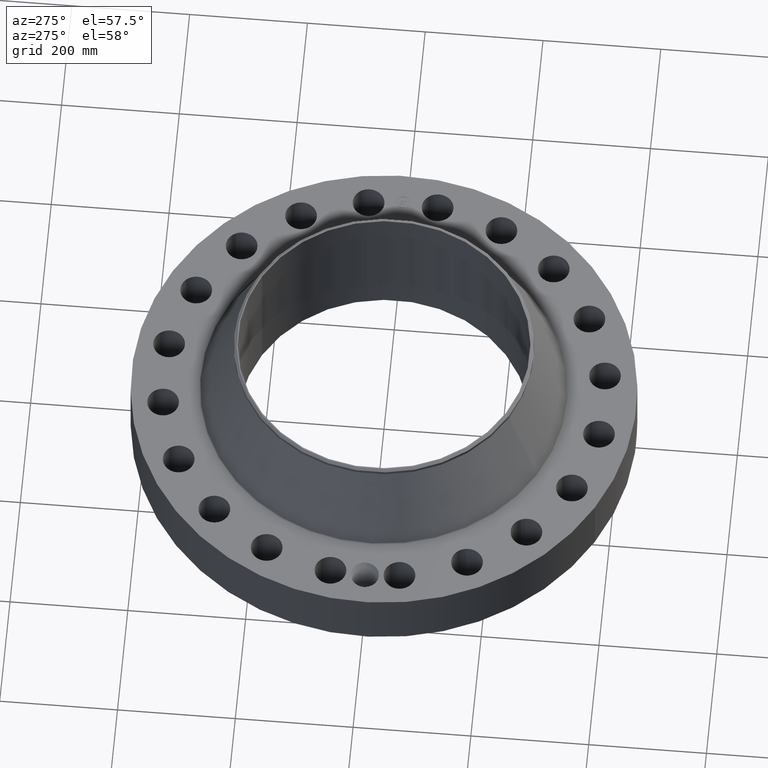
[diagram: clean part render]
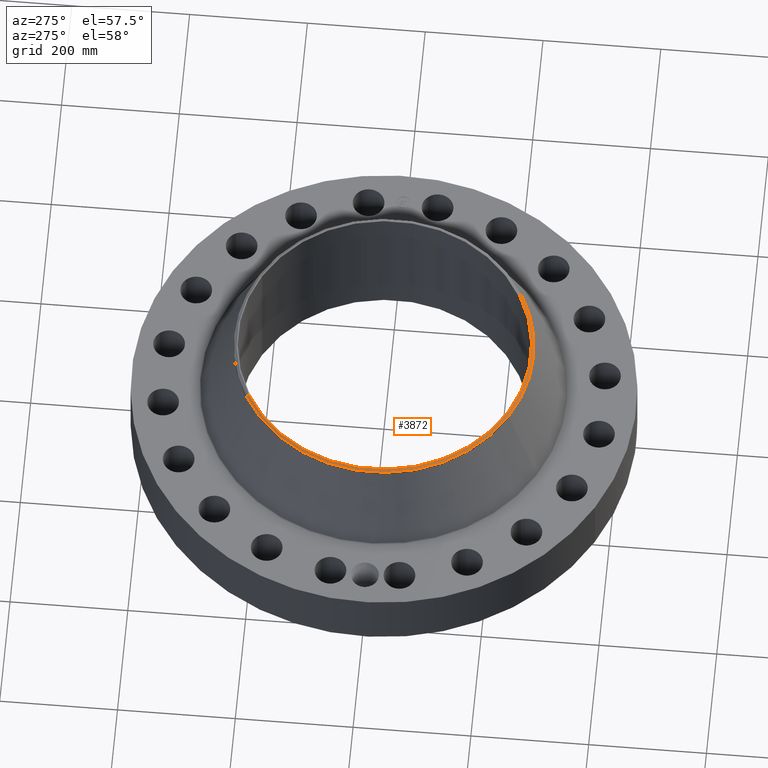
[diagram: same view with one face highlighted and labeled with its STEP entity id]
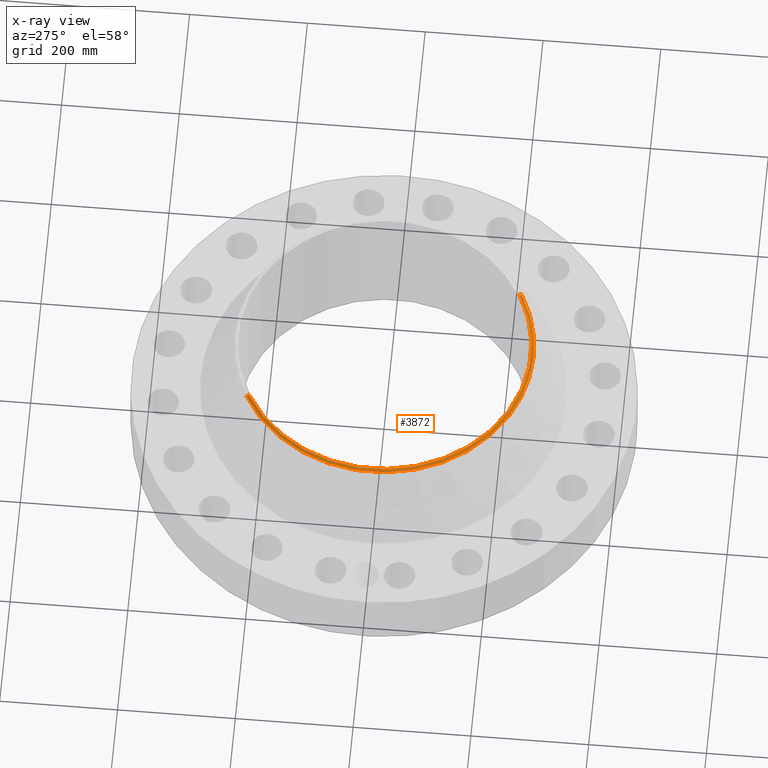
[diagram: x-ray of the same camera — body ghosted, the highlighted face saturated]
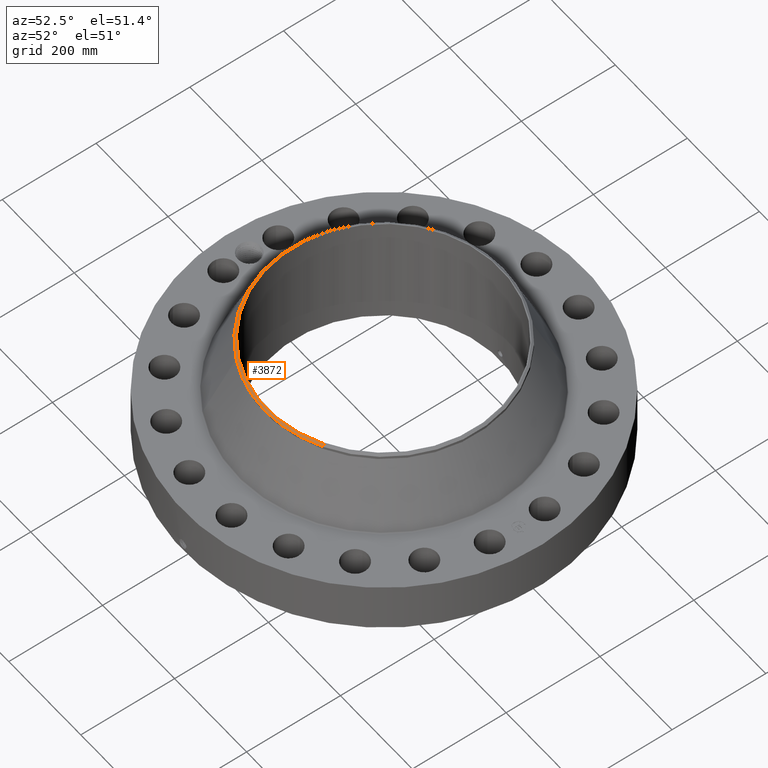
[diagram: same view with one face highlighted and labeled with its STEP entity id]
A machine part, auxiliary view. The second image highlights one B-rep face of the part: STEP entity #3872.
The next image is the same camera in x-ray: the body ghosted, the highlighted face saturated — about 0% of this face is hidden behind the body in this view.
A second angle (auxiliary view) of the same face is appended — the face is thin or edge-on in the first view.
In plain terms, the highlighted conical surface has half-angle 52.5 deg.
Its self-contained STEP definition (entity closure, byte-faithful):
#3001=AXIS2_PLACEMENT_3D('Circle Axis2P3D',#2999,#3000,$) ;
#3837=AXIS2_PLACEMENT_3D('Cone Axis2P3D',#3834,#3835,#3836) ;
#3855=AXIS2_PLACEMENT_3D('Circle Axis2P3D',#3853,#3854,$) ;
#3862=AXIS2_PLACEMENT_3D('Circle Axis2P3D',#3860,#3861,$) ;
#2994=CARTESIAN_POINT('Vertex',(4.71214904382,-8.62553096759,10.)) ;
#2996=CARTESIAN_POINT('Vertex',(-4.71214904382,8.62553096759,10.)) ;
#2999=CARTESIAN_POINT('Axis2P3D Location',(0.,0.,10.)) ;
#3834=CARTESIAN_POINT('Axis2P3D Location',(0.,0.,10.)) ;
#3839=CARTESIAN_POINT('Line Origine',(4.75320221494,-8.70067829326,9.93429385048)) ;
#3843=CARTESIAN_POINT('Vertex',(4.79425538606,-8.77582561894,9.86858770092)) ;
#3846=CARTESIAN_POINT('Line Origine',(-4.75320221494,8.70067829326,9.93429385048)) ;
#3850=CARTESIAN_POINT('Vertex',(-4.79425538606,8.77582561894,9.86858770092)) ;
#3853=CARTESIAN_POINT('Axis2P3D Location',(0.,0.,9.86858770092)) ;
#3857=CARTESIAN_POINT('Vertex',(-4.79425538606,-8.77582561894,9.86858770092)) ;
#3860=CARTESIAN_POINT('Axis2P3D Location',(0.,0.,9.86858770092)) ;
#3000=DIRECTION('Axis2P3D Direction',(0.,0.,-0.0393700787402)) ;
#3835=DIRECTION('Axis2P3D Direction',(-0.,-0.,-0.0393700787402)) ;
#3836=DIRECTION('Axis2P3D XDirection',(-0.0188750212049,0.0345504945626,0.)) ;
#3840=DIRECTION('Vector Direction',(0.014974561121,-0.02741075027,-0.023966985394)) ;
#3847=DIRECTION('Vector Direction',(-0.014974561121,0.02741075027,-0.023966985394)) ;
#3854=DIRECTION('Axis2P3D Direction',(0.,0.,-0.0393700787402)) ;
#3861=DIRECTION('Axis2P3D Direction',(0.,0.,-0.0393700787402)) ;
#3841=VECTOR('Line Direction',#3840,0.0393700787402) ;
#3848=VECTOR('Line Direction',#3847,0.0393700787402) ;
#3866=ORIENTED_EDGE('',*,*,#3845,.F.) ;
#3867=ORIENTED_EDGE('',*,*,#3003,.F.) ;
#3868=ORIENTED_EDGE('',*,*,#3852,.T.) ;
#3869=ORIENTED_EDGE('',*,*,#3859,.T.) ;
#3870=ORIENTED_EDGE('',*,*,#3864,.F.) ;
#3872=ADVANCED_FACE('PartBody',(#3871),#3838,.T.) ;
#3002=CIRCLE('generated circle',#3001,9.82874015752) ;
#3856=CIRCLE('generated circle',#3855,10.) ;
#3863=CIRCLE('generated circle',#3862,10.) ;
#3838=CONICAL_SURFACE('Cone',#3837,9.82874015752,0.916297857297) ;
#3003=EDGE_CURVE('',#2997,#2995,#3002,.F.) ;
#3845=EDGE_CURVE('',#2995,#3844,#3842,.T.) ;
#3852=EDGE_CURVE('',#2997,#3851,#3849,.T.) ;
#3859=EDGE_CURVE('',#3851,#3858,#3856,.F.) ;
#3864=EDGE_CURVE('',#3844,#3858,#3863,.T.) ;
#3865=EDGE_LOOP('',(#3866,#3867,#3868,#3869,#3870)) ;
#3871=FACE_OUTER_BOUND('',#3865,.T.) ;
#3842=LINE('Line',#3839,#3841) ;
#3849=LINE('Line',#3846,#3848) ;
#2995=VERTEX_POINT('',#2994) ;
#2997=VERTEX_POINT('',#2996) ;
#3844=VERTEX_POINT('',#3843) ;
#3851=VERTEX_POINT('',#3850) ;
#3858=VERTEX_POINT('',#3857) ;